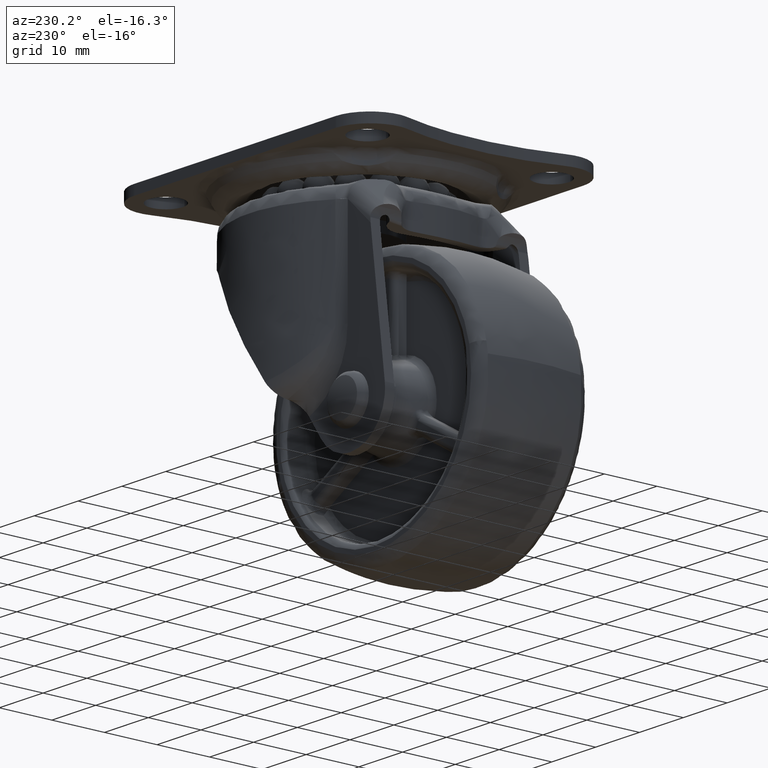
[diagram: clean part render]
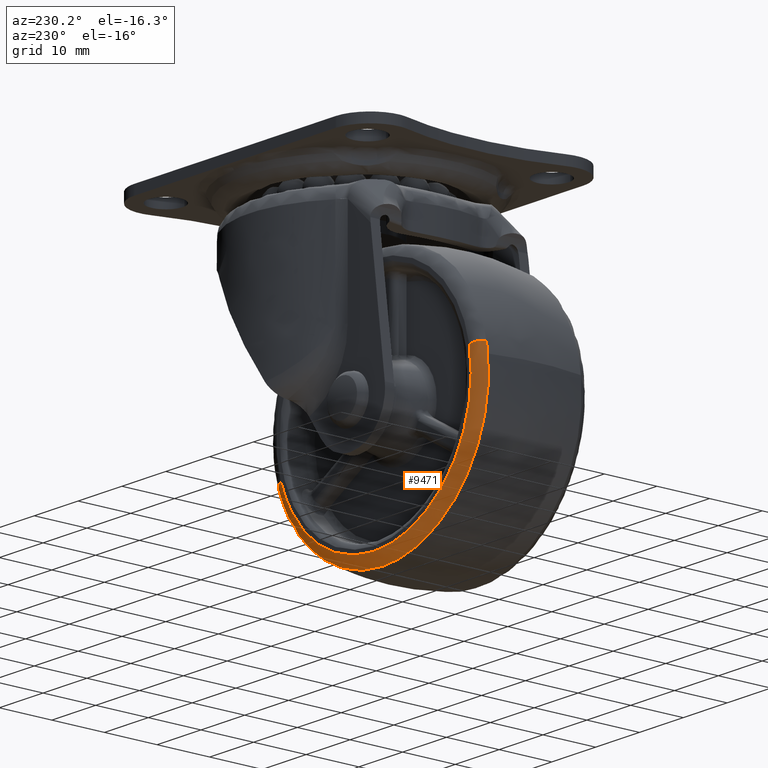
[diagram: same view with one face highlighted and labeled with its STEP entity id]
A machine part, auxiliary view. The second image highlights one B-rep face of the part: STEP entity #9471.
In plain terms, the highlighted face is a freeform B-spline surface patch.
Its self-contained STEP definition (entity closure, byte-faithful):
#9272=CARTESIAN_POINT('',(21.134715205679321,10.499999999999890,-6.928473562163987));
#9273=VERTEX_POINT('',#9272);
#9291=CARTESIAN_POINT('',(-21.793349441248260,10.499999999999879,4.441829821398289));
#9292=VERTEX_POINT('',#9291);
#9306=CARTESIAN_POINT('',(-23.722087220993600,8.854173101224017,4.834937131916131));
#9307=VERTEX_POINT('',#9306);
#9308=CARTESIAN_POINT('',(-21.793349441248253,10.499999999999879,4.441829821398290));
#9309=CARTESIAN_POINT('',(-23.431918889771605,10.500000577717632,4.775796229763549));
#9310=CARTESIAN_POINT('',(-23.722087220993593,8.854173101224017,4.834937131916131));
#9318=(BOUNDED_CURVE()B_SPLINE_CURVE(2,(#9308,#9309,#9310),.UNSPECIFIED.,.F.,.U.)B_SPLINE_CURVE_WITH_KNOTS((3,3),(-1.697351333533120,-0.291172865349414),.UNSPECIFIED.)CURVE()GEOMETRIC_REPRESENTATION_ITEM()RATIONAL_B_SPLINE_CURVE((0.891894281232687,0.685532039318467,0.895290233792732))REPRESENTATION_ITEM(''));
#9319=EDGE_CURVE('',#9292,#9307,#9318,.T.);
#9336=CARTESIAN_POINT('',(23.005164256544919,8.854165030875187,-7.541652242719822));
#9337=VERTEX_POINT('',#9336);
#9353=CARTESIAN_POINT('',(21.134715205679324,10.499999999999885,-6.928473562163987));
#9354=CARTESIAN_POINT('',(22.723770719894738,10.500000551548984,-7.449404598969426));
#9355=CARTESIAN_POINT('',(23.005164256544923,8.854165030875187,-7.541652242719822));
#9363=(BOUNDED_CURVE()B_SPLINE_CURVE(2,(#9353,#9354,#9355),.UNSPECIFIED.,.F.,.U.)B_SPLINE_CURVE_WITH_KNOTS((3,3),(-1.697351316411718,-0.291168380152194),.UNSPECIFIED.)CURVE()GEOMETRIC_REPRESENTATION_ITEM()RATIONAL_B_SPLINE_CURVE((0.853441251796587,0.655975464600696,0.856692076885611))REPRESENTATION_ITEM(''));
#9364=EDGE_CURVE('',#9273,#9337,#9363,.T.);
#9369=CARTESIAN_POINT('',(-21.669092896721793,10.495975640249487,4.416504369334165));
#9370=CARTESIAN_POINT('',(-26.085597266055945,10.495975640249485,-17.252588527387612));
#9371=CARTESIAN_POINT('',(-4.416504369334167,10.495975640249487,-21.669092896721793));
#9372=CARTESIAN_POINT('',(14.879643019644657,10.495975640249487,-25.601953384279796));
#9373=CARTESIAN_POINT('',(21.014213902904064,10.495975640249489,-6.888970304341548));
#9374=CARTESIAN_POINT('',(-23.526878467435619,10.616434383229850,4.795150495844836));
#9375=CARTESIAN_POINT('',(-28.322028963280463,10.616434383229850,-18.731727971590786));
#9376=CARTESIAN_POINT('',(-4.795150495844837,10.616434383229850,-23.526878467435619));
#9377=CARTESIAN_POINT('',(16.155339525770700,10.616434383229844,-27.796920188201646));
#9378=CARTESIAN_POINT('',(22.815853849475864,10.616434383229848,-7.479591687962919));
#9379=CARTESIAN_POINT('',(-23.740155691489530,8.729141699958452,4.838619772403989));
#9380=CARTESIAN_POINT('',(-28.578775463893532,8.729141699958452,-18.901535919085543));
#9381=CARTESIAN_POINT('',(-4.838619772403992,8.729141699958452,-23.740155691489530));
#9382=CARTESIAN_POINT('',(16.301791847206964,8.729141699958449,-28.048906442272429));
#9383=CARTESIAN_POINT('',(23.022685451899090,8.729141699958452,-7.547396116607094));
#9391=(BOUNDED_SURFACE()B_SPLINE_SURFACE(2,2,((#9369,#9374,#9379),(#9370,#9375,#9380),(#9371,#9376,#9381),(#9372,#9377,#9382),(#9373,#9378,#9383)),.UNSPECIFIED.,.F.,.F.,.U.)B_SPLINE_SURFACE_WITH_KNOTS((3,2,3),(3,3),(0.0,40.142649410589009,77.073886868330888),(0.0,3.193957149618754),.UNSPECIFIED.)GEOMETRIC_REPRESENTATION_ITEM()RATIONAL_B_SPLINE_SURFACE(((0.913548205319859,0.663707773996595,0.917284861659182),(0.645976130922473,0.469312267719221,0.648618345958972),(0.913548205319859,0.663707773996595,0.917284861659182),(0.667381896874264,0.484863908221411,0.670111667214989),(0.874161595968563,0.635092755472565,0.877737150548111)))REPRESENTATION_ITEM('')SURFACE());
#9392=CARTESIAN_POINT('',(0.0,10.499999999999879,-22.241401301868301));
#9393=VERTEX_POINT('',#9392);
#9394=CARTESIAN_POINT('',(0.0,10.499999999999879,-22.241401301868301));
#9395=CARTESIAN_POINT('',(16.114765118390832,10.499999999999879,-22.241401301868308));
#9396=CARTESIAN_POINT('',(21.134715205679324,10.499999999999886,-6.928473562163987));
#9404=(BOUNDED_CURVE()B_SPLINE_CURVE(2,(#9394,#9395,#9396),.UNSPECIFIED.,.F.,.U.)B_SPLINE_CURVE_WITH_KNOTS((3,3),(0.0,0.197031393971889),.UNSPECIFIED.)CURVE()GEOMETRIC_REPRESENTATION_ITEM()RATIONAL_B_SPLINE_CURVE((1.0,0.769163363249087,0.902183241048695))REPRESENTATION_ITEM(''));
#9405=EDGE_CURVE('',#9393,#9273,#9404,.T.);
#9406=ORIENTED_EDGE('',*,*,#9405,.T.);
#9407=ORIENTED_EDGE('',*,*,#9364,.T.);
#9408=CARTESIAN_POINT('',(0.0,8.854166545756570,-24.209793078004349));
#9409=VERTEX_POINT('',#9408);
#9410=CARTESIAN_POINT('',(0.0,8.854166545756570,-24.209793078004349));
#9411=CARTESIAN_POINT('',(17.540941736750824,8.854166545756568,-24.209793078004342));
#9412=CARTESIAN_POINT('',(23.005164256544923,8.854165030875187,-7.541652242719822));
#9420=(BOUNDED_CURVE()B_SPLINE_CURVE(2,(#9410,#9411,#9412),.UNSPECIFIED.,.F.,.U.)B_SPLINE_CURVE_WITH_KNOTS((3,3),(0.0,0.197031392170585),.UNSPECIFIED.)CURVE()GEOMETRIC_REPRESENTATION_ITEM()RATIONAL_B_SPLINE_CURVE((1.0,0.769163365359447,0.902183238616500))REPRESENTATION_ITEM(''));
#9421=EDGE_CURVE('',#9409,#9337,#9420,.T.);
#9422=ORIENTED_EDGE('',*,*,#9421,.F.);
#9423=CARTESIAN_POINT('',(-24.047870741359429,8.854173623720396,2.795341128181392));
#9424=VERTEX_POINT('',#9423);
#9425=CARTESIAN_POINT('',(-24.047870741359432,8.854173623720396,2.795341128181393));
#9426=CARTESIAN_POINT('',(-24.209791845618810,8.854173441172351,1.402360160282495));
#9427=CARTESIAN_POINT('',(-24.209791882256919,8.854173236175649,-0.000000138994505));
#9428=CARTESIAN_POINT('',(-24.209792514762661,8.854169697193735,-24.209793143475952));
#9429=CARTESIAN_POINT('',(0.0,8.854166545756570,-24.209793078004349));
#9437=(BOUNDED_CURVE()B_SPLINE_CURVE(2,(#9425,#9426,#9427,#9428,#9429),.UNSPECIFIED.,.F.,.U.)B_SPLINE_CURVE_WITH_KNOTS((3,2,3),(0.730000167585337,0.750000000000000,1.0),.UNSPECIFIED.)CURVE()GEOMETRIC_REPRESENTATION_ITEM()RATIONAL_B_SPLINE_CURVE((0.956886448039494,0.976568738833359,1.0,0.707106781186548,1.0))REPRESENTATION_ITEM(''));
#9438=EDGE_CURVE('',#9424,#9409,#9437,.T.);
#9439=ORIENTED_EDGE('',*,*,#9438,.F.);
#9440=CARTESIAN_POINT('',(-23.722087220993597,8.854173101224017,4.834937131916131));
#9441=CARTESIAN_POINT('',(-23.928520314679044,8.854173342128808,3.822093963543790));
#9442=CARTESIAN_POINT('',(-24.047870741359432,8.854173623720396,2.795341128181393));
#9450=(BOUNDED_CURVE()B_SPLINE_CURVE(2,(#9440,#9441,#9442),.UNSPECIFIED.,.F.,.U.)B_SPLINE_CURVE_WITH_KNOTS((3,3),(0.715767039487939,0.730000167585337),.UNSPECIFIED.)CURVE()GEOMETRIC_REPRESENTATION_ITEM()RATIONAL_B_SPLINE_CURVE((0.930770872692935,0.942879302363917,0.956886448039494))REPRESENTATION_ITEM(''));
#9451=EDGE_CURVE('',#9307,#9424,#9450,.T.);
#9452=ORIENTED_EDGE('',*,*,#9451,.F.);
#9453=ORIENTED_EDGE('',*,*,#9319,.F.);
#9454=CARTESIAN_POINT('',(-21.793349441248253,10.499999999999879,4.441829821398289));
#9455=CARTESIAN_POINT('',(-22.241401301868301,10.499999999999885,2.243512632606965));
#9456=CARTESIAN_POINT('',(-22.241401301868301,10.499999999999879,1.224606E-015));
#9457=CARTESIAN_POINT('',(-22.241401301868301,10.499999999999879,-22.241401301868301));
#9458=CARTESIAN_POINT('',(0.0,10.499999999999879,-22.241401301868301));
#9466=(BOUNDED_CURVE()B_SPLINE_CURVE(2,(#9454,#9455,#9456,#9457,#9458),.UNSPECIFIED.,.F.,.U.)B_SPLINE_CURVE_WITH_KNOTS((3,2,3),(0.715767038507918,0.750000000000000,1.0),.UNSPECIFIED.)CURVE()GEOMETRIC_REPRESENTATION_ITEM()RATIONAL_B_SPLINE_CURVE((0.930770871025484,0.959893590876269,1.0,0.707106781186547,1.0))REPRESENTATION_ITEM(''));
#9467=EDGE_CURVE('',#9292,#9393,#9466,.T.);
#9468=ORIENTED_EDGE('',*,*,#9467,.T.);
#9469=EDGE_LOOP('',(#9406,#9407,#9422,#9439,#9452,#9453,#9468));
#9470=FACE_OUTER_BOUND('',#9469,.T.);
#9471=ADVANCED_FACE('',(#9470),#9391,.T.);